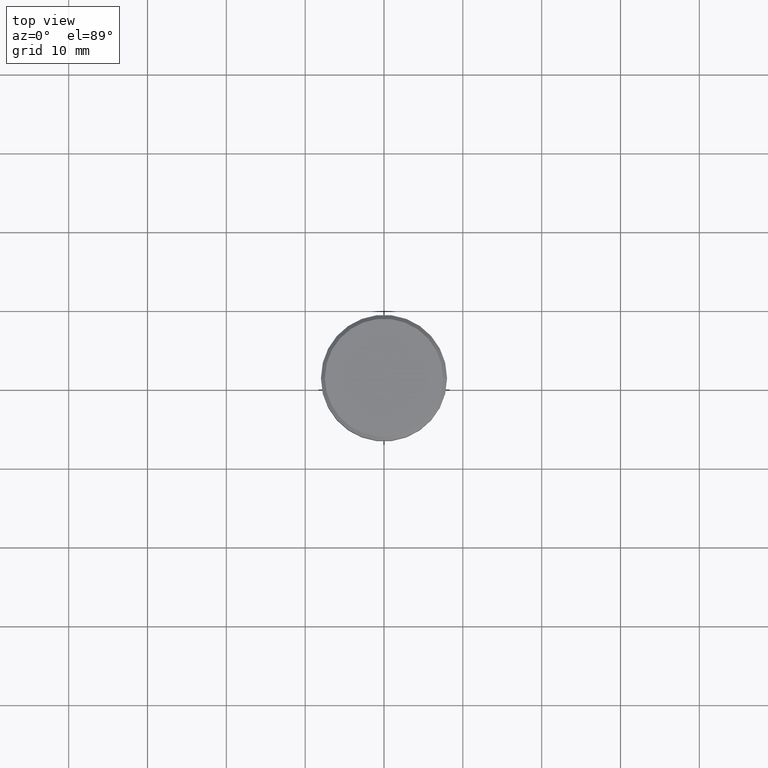
[diagram: clean part render]
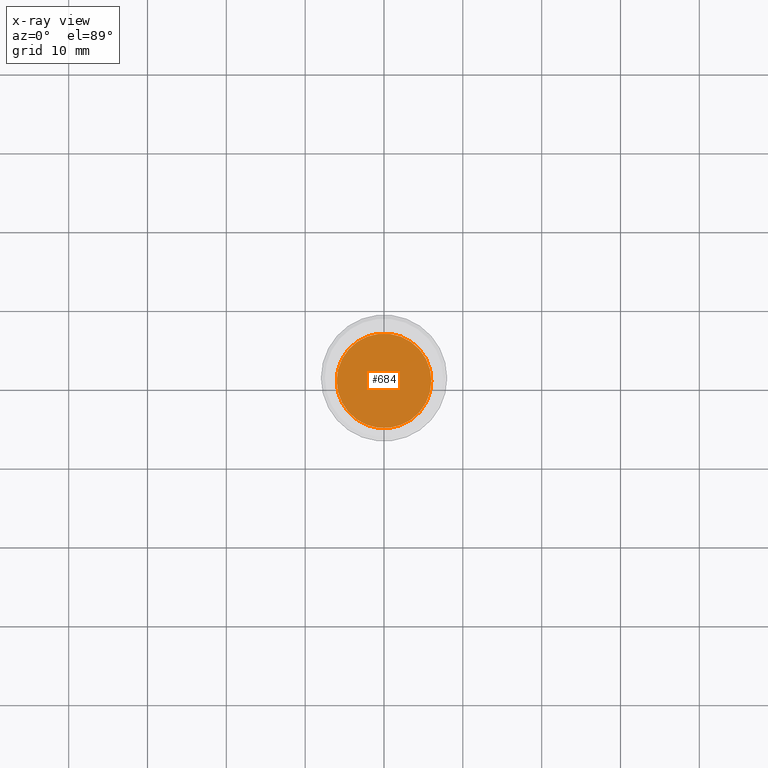
[diagram: x-ray — body ghosted, one internal face saturated and labeled with its STEP entity id]
A machine part, top view, then the same camera in x-ray: the body is ghosted and one INTERNAL B-rep face — a face not visible from any outside direction — is saturated and labeled: STEP entity #684.
In plain terms, the highlighted planar face has unit normal (0, 0, -1).
Its self-contained STEP definition (entity closure, byte-faithful):
#1 = ORIENTED_EDGE ( 'NONE', *, *, #320, .T. ) ;
#27 = DIRECTION ( 'NONE',  ( 0.000000000000000000, 0.000000000000000000, -1.000000000000000000 ) ) ;
#31 = PLANE ( 'NONE',  #1024 ) ;
#50 = CARTESIAN_POINT ( 'NONE',  ( -6.000000000000000888, 7.347880794884120722E-16, -22.50000000000000000 ) ) ;
#84 = DIRECTION ( 'NONE',  ( -0.000000000000000000, -0.000000000000000000, 1.000000000000000000 ) ) ;
#115 = DIRECTION ( 'NONE',  ( 1.000000000000000000, 0.000000000000000000, 0.000000000000000000 ) ) ;
#141 = EDGE_CURVE ( 'NONE', #364, #824, #847, .T. ) ;
#187 = CARTESIAN_POINT ( 'NONE',  ( 0.000000000000000000, -3.469446951953614189E-15, -22.50000000000000000 ) ) ;
#320 = EDGE_CURVE ( 'NONE', #824, #364, #357, .T. ) ;
#350 = ORIENTED_EDGE ( 'NONE', *, *, #141, .T. ) ;
#357 = CIRCLE ( 'NONE', #967, 6.000000000000000000 ) ;
#364 = VERTEX_POINT ( 'NONE', #614 ) ;
#399 = DIRECTION ( 'NONE',  ( 1.000000000000000000, 0.000000000000000000, 0.000000000000000000 ) ) ;
#446 = AXIS2_PLACEMENT_3D ( 'NONE', #673, #84, #399 ) ;
#614 = CARTESIAN_POINT ( 'NONE',  ( 6.000000000000000000, 0.000000000000000000, -22.50000000000000000 ) ) ;
#673 = CARTESIAN_POINT ( 'NONE',  ( 0.000000000000000000, 0.000000000000000000, -22.50000000000000000 ) ) ;
#684 = ADVANCED_FACE ( 'NONE', ( #769 ), #31, .F. ) ;
#769 = FACE_OUTER_BOUND ( 'NONE', #797, .T. ) ;
#797 = EDGE_LOOP ( 'NONE', ( #350, #1 ) ) ;
#824 = VERTEX_POINT ( 'NONE', #50 ) ;
#847 = CIRCLE ( 'NONE', #446, 6.000000000000000000 ) ;
#854 = DIRECTION ( 'NONE',  ( -0.000000000000000000, -0.000000000000000000, 1.000000000000000000 ) ) ;
#931 = CARTESIAN_POINT ( 'NONE',  ( 0.000000000000000000, 0.000000000000000000, -22.50000000000000000 ) ) ;
#967 = AXIS2_PLACEMENT_3D ( 'NONE', #931, #854, #115 ) ;
#1018 = DIRECTION ( 'NONE',  ( -1.000000000000000000, 0.000000000000000000, -0.000000000000000000 ) ) ;
#1024 = AXIS2_PLACEMENT_3D ( 'NONE', #187, #27, #1018 ) ;